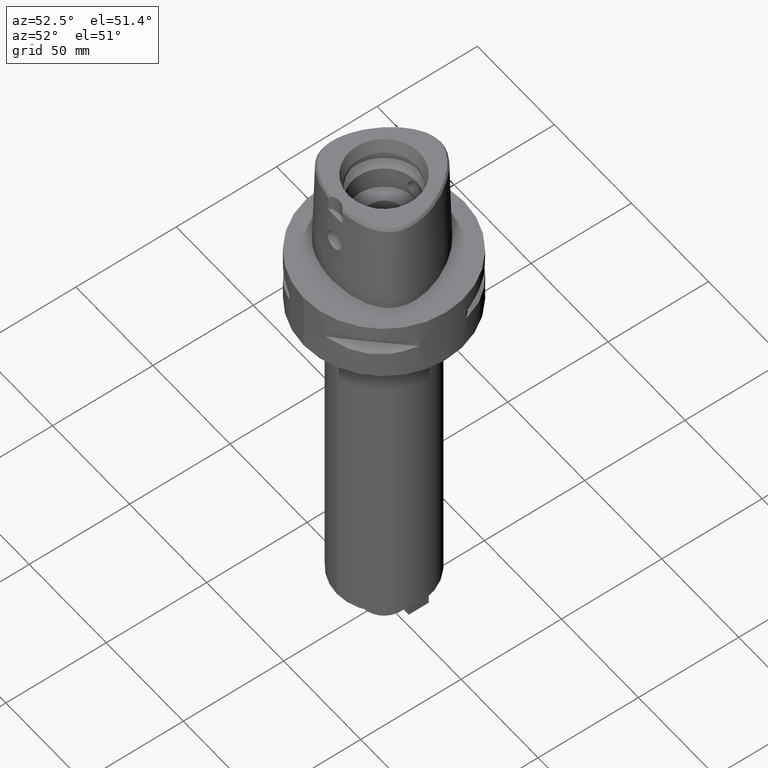
[diagram: clean part render]
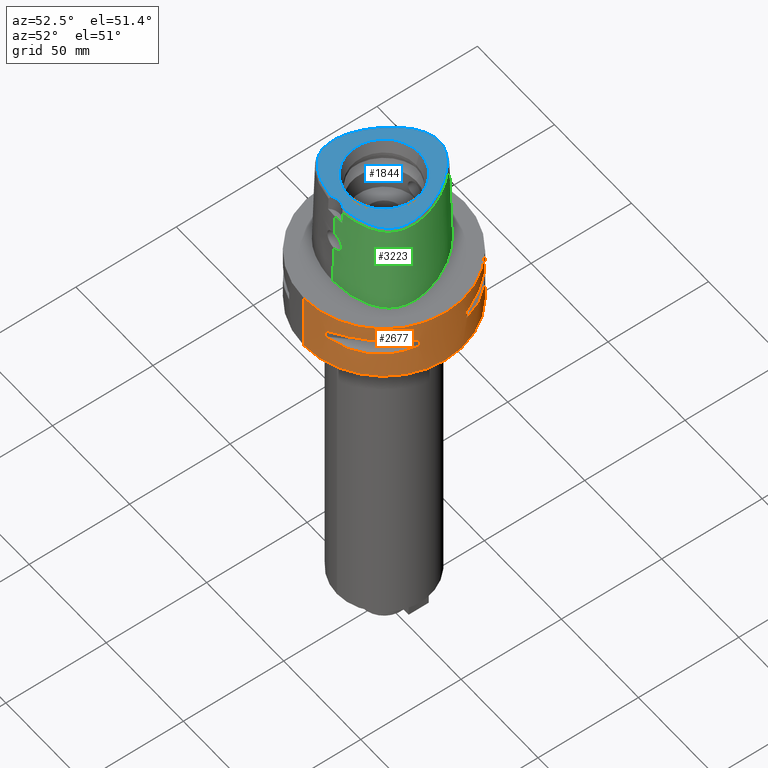
[diagram: same view with three faces highlighted in distinct colors, each labeled with its STEP entity id]
A machine part, auxiliary view with three faces highlighted in distinct colors.
Their STEP definitions:

[orange] entity #2677 — the highlighted cylindrical surface (partial cylindrical patch) has radius 40 mm, axis along (0, 0, -1).
#275=CARTESIAN_POINT('',(0.E0,1.358133300254E-14,2.131628207280E-14));
#276=DIRECTION('',(0.E0,0.E0,-1.E0));
#277=DIRECTION('',(0.E0,1.E0,0.E0));
#278=AXIS2_PLACEMENT_3D('',#275,#276,#277);
#363=DIRECTION('',(0.E0,0.E0,-1.E0));
#364=VECTOR('',#363,3.E1);
#365=CARTESIAN_POINT('',(0.E0,-4.E1,1.421085471520E-14));
#366=LINE('',#365,#364);
#420=DIRECTION('',(0.E0,0.E0,-1.E0));
#421=VECTOR('',#420,3.E1);
#422=CARTESIAN_POINT('',(0.E0,4.E1,1.421085471520E-14));
#423=LINE('',#422,#421);
#427=DIRECTION('',(0.E0,0.E0,-1.E0));
#428=VECTOR('',#427,4.1E0);
#429=CARTESIAN_POINT('',(1.176033600281E1,-3.823211342708E1,-9.95E0));
#430=LINE('',#429,#428);
#434=CARTESIAN_POINT('',(1.323717311056E1,-3.774622163927E1,-1.405E1));
#435=CARTESIAN_POINT('',(1.626143876435E1,-3.668564587161E1,-1.485167303901E1));
#436=CARTESIAN_POINT('',(2.171906657626E1,-3.397359084062E1,-1.597254843317E1));
#437=CARTESIAN_POINT('',(2.850324251697E1,-2.850324251697E1,-1.650891631180E1));
#438=CARTESIAN_POINT('',(3.397359084062E1,-2.171906657626E1,-1.597254843317E1));
#439=CARTESIAN_POINT('',(3.668564587161E1,-1.626143876435E1,-1.485167303901E1));
#440=CARTESIAN_POINT('',(3.774622163927E1,-1.323717311056E1,-1.405E1));
#445=DIRECTION('',(0.E0,0.E0,1.E0));
#446=VECTOR('',#445,4.1E0);
#447=CARTESIAN_POINT('',(3.823211342708E1,-1.176033600281E1,-1.405E1));
#448=LINE('',#447,#446);
#452=DIRECTION('',(0.E0,0.E0,-1.E0));
#453=VECTOR('',#452,4.1E0);
#454=CARTESIAN_POINT('',(3.823211342708E1,1.176033600281E1,-9.95E0));
#455=LINE('',#454,#453);
#459=CARTESIAN_POINT('',(3.774622163927E1,1.323717311056E1,-1.405E1));
#460=CARTESIAN_POINT('',(3.668564587161E1,1.626143876435E1,-1.485167303901E1));
#461=CARTESIAN_POINT('',(3.397359084062E1,2.171906657626E1,-1.597254843317E1));
#462=CARTESIAN_POINT('',(2.850324251697E1,2.850324251697E1,-1.650891631180E1));
#463=CARTESIAN_POINT('',(2.171906657626E1,3.397359084062E1,-1.597254843317E1));
#464=CARTESIAN_POINT('',(1.626143876435E1,3.668564587161E1,-1.485167303901E1));
#465=CARTESIAN_POINT('',(1.323717311056E1,3.774622163927E1,-1.405E1));
#470=DIRECTION('',(0.E0,0.E0,1.E0));
#471=VECTOR('',#470,4.1E0);
#472=CARTESIAN_POINT('',(1.176033600281E1,3.823211342708E1,-1.405E1));
#473=LINE('',#472,#471);
#477=CARTESIAN_POINT('',(0.E0,1.358133300254E-14,-3.E1));
#478=DIRECTION('',(0.E0,0.E0,1.E0));
#479=DIRECTION('',(0.E0,-1.E0,0.E0));
#480=AXIS2_PLACEMENT_3D('',#477,#478,#479);
#1342=CARTESIAN_POINT('',(1.323717311056E1,-3.774622163927E1,
-9.950000000002E0));
#1343=CARTESIAN_POINT('',(1.626143876435E1,-3.668564587161E1,
-9.148326960991E0));
#1344=CARTESIAN_POINT('',(2.171906657626E1,-3.397359084062E1,
-8.027451566833E0));
#1345=CARTESIAN_POINT('',(2.850324251697E1,-2.850324251697E1,
-7.491083688204E0));
#1346=CARTESIAN_POINT('',(3.397359084062E1,-2.171906657626E1,
-8.027451566833E0));
#1347=CARTESIAN_POINT('',(3.668564587161E1,-1.626143876435E1,
-9.148326960991E0));
#1348=CARTESIAN_POINT('',(3.774622163927E1,-1.323717311056E1,
-9.950000000002E0));
#1353=CARTESIAN_POINT('',(0.E0,1.358133300254E-14,-9.95E0));
#1354=DIRECTION('',(0.E0,0.E0,1.E0));
#1355=DIRECTION('',(9.436555409818E-1,-3.309293277639E-1,0.E0));
#1356=AXIS2_PLACEMENT_3D('',#1353,#1354,#1355);
#1361=CARTESIAN_POINT('',(0.E0,1.358133300254E-14,-9.95E0));
#1362=DIRECTION('',(0.E0,0.E0,1.E0));
#1363=DIRECTION('',(2.940084000703E-1,-9.558028356770E-1,0.E0));
#1364=AXIS2_PLACEMENT_3D('',#1361,#1362,#1363);
#1383=CARTESIAN_POINT('',(0.E0,1.358133300254E-14,-1.405E1));
#1384=DIRECTION('',(0.E0,0.E0,-1.E0));
#1385=DIRECTION('',(9.558028356770E-1,-2.940084000703E-1,0.E0));
#1386=AXIS2_PLACEMENT_3D('',#1383,#1384,#1385);
#1391=CARTESIAN_POINT('',(0.E0,1.358133300254E-14,-1.405E1));
#1392=DIRECTION('',(0.E0,0.E0,-1.E0));
#1393=DIRECTION('',(3.309293277639E-1,-9.436555409818E-1,0.E0));
#1394=AXIS2_PLACEMENT_3D('',#1391,#1392,#1393);
#1413=CARTESIAN_POINT('',(3.774622163927E1,1.323717311056E1,-9.950000000002E0));
#1414=CARTESIAN_POINT('',(3.668564587161E1,1.626143876435E1,-9.148326960991E0));
#1415=CARTESIAN_POINT('',(3.397359084062E1,2.171906657626E1,-8.027451566833E0));
#1416=CARTESIAN_POINT('',(2.850324251697E1,2.850324251697E1,-7.491083688204E0));
#1417=CARTESIAN_POINT('',(2.171906657626E1,3.397359084062E1,-8.027451566833E0));
#1418=CARTESIAN_POINT('',(1.626143876435E1,3.668564587161E1,-9.148326960991E0));
#1419=CARTESIAN_POINT('',(1.323717311056E1,3.774622163927E1,-9.950000000002E0));
#1424=CARTESIAN_POINT('',(0.E0,1.358133300254E-14,-9.95E0));
#1425=DIRECTION('',(0.E0,0.E0,1.E0));
#1426=DIRECTION('',(3.309293277639E-1,9.436555409818E-1,0.E0));
#1427=AXIS2_PLACEMENT_3D('',#1424,#1425,#1426);
#1432=CARTESIAN_POINT('',(0.E0,1.358133300254E-14,-9.95E0));
#1433=DIRECTION('',(0.E0,0.E0,1.E0));
#1434=DIRECTION('',(9.558028356770E-1,2.940084000703E-1,0.E0));
#1435=AXIS2_PLACEMENT_3D('',#1432,#1433,#1434);
#1454=CARTESIAN_POINT('',(0.E0,1.358133300254E-14,-1.405E1));
#1455=DIRECTION('',(0.E0,0.E0,-1.E0));
#1456=DIRECTION('',(2.940084000703E-1,9.558028356770E-1,0.E0));
#1457=AXIS2_PLACEMENT_3D('',#1454,#1455,#1456);
#1462=CARTESIAN_POINT('',(0.E0,1.358133300254E-14,-1.405E1));
#1463=DIRECTION('',(0.E0,0.E0,-1.E0));
#1464=DIRECTION('',(9.436555409818E-1,3.309293277639E-1,0.E0));
#1465=AXIS2_PLACEMENT_3D('',#1462,#1463,#1464);
#1648=CARTESIAN_POINT('',(0.E0,-4.E1,2.131628207280E-14));
#1649=CARTESIAN_POINT('',(0.E0,4.E1,2.131628207280E-14));
#1650=VERTEX_POINT('',#1648);
#1651=VERTEX_POINT('',#1649);
#1652=CARTESIAN_POINT('',(0.E0,4.E1,-3.E1));
#1653=VERTEX_POINT('',#1652);
#1654=CARTESIAN_POINT('',(0.E0,-4.E1,-3.E1));
#1655=VERTEX_POINT('',#1654);
#1682=VERTEX_POINT('',#1342);
#1683=VERTEX_POINT('',#1348);
#1684=CARTESIAN_POINT('',(1.176033600281E1,-3.823211342708E1,-9.95E0));
#1685=VERTEX_POINT('',#1684);
#1686=CARTESIAN_POINT('',(1.176033600281E1,-3.823211342708E1,-1.405E1));
#1687=VERTEX_POINT('',#1686);
#1688=CARTESIAN_POINT('',(1.323717311056E1,-3.774622163927E1,-1.405E1));
#1689=VERTEX_POINT('',#1688);
#1690=VERTEX_POINT('',#440);
#1691=CARTESIAN_POINT('',(3.823211342708E1,-1.176033600281E1,-1.405E1));
#1692=VERTEX_POINT('',#1691);
#1693=CARTESIAN_POINT('',(3.823211342708E1,-1.176033600281E1,-9.95E0));
#1694=VERTEX_POINT('',#1693);
#1695=VERTEX_POINT('',#1413);
#1696=VERTEX_POINT('',#1419);
#1697=CARTESIAN_POINT('',(3.823211342708E1,1.176033600281E1,-9.95E0));
#1698=VERTEX_POINT('',#1697);
#1699=CARTESIAN_POINT('',(3.823211342708E1,1.176033600281E1,-1.405E1));
#1700=VERTEX_POINT('',#1699);
#1701=CARTESIAN_POINT('',(3.774622163927E1,1.323717311056E1,-1.405E1));
#1702=VERTEX_POINT('',#1701);
#1703=VERTEX_POINT('',#465);
#1704=CARTESIAN_POINT('',(1.176033600281E1,3.823211342708E1,-1.405E1));
#1705=VERTEX_POINT('',#1704);
#1706=CARTESIAN_POINT('',(1.176033600281E1,3.823211342708E1,-9.95E0));
#1707=VERTEX_POINT('',#1706);
#2629=CARTESIAN_POINT('',(0.E0,1.358133300254E-14,1.09E1));
#2630=DIRECTION('',(0.E0,0.E0,-1.E0));
#2631=DIRECTION('',(0.E0,-1.E0,0.E0));
#2632=AXIS2_PLACEMENT_3D('',#2629,#2630,#2631);
#2633=CYLINDRICAL_SURFACE('',#2632,4.E1);
#2634=ORIENTED_EDGE('',*,*,#2583,.T.);
#2636=ORIENTED_EDGE('',*,*,#2635,.F.);
#2637=ORIENTED_EDGE('',*,*,#2586,.F.);
#2638=ORIENTED_EDGE('',*,*,#2568,.F.);
#2639=EDGE_LOOP('',(#2634,#2636,#2637,#2638));
#2640=FACE_OUTER_BOUND('',#2639,.F.);
#2642=ORIENTED_EDGE('',*,*,#2641,.F.);
#2644=ORIENTED_EDGE('',*,*,#2643,.F.);
#2646=ORIENTED_EDGE('',*,*,#2645,.T.);
#2648=ORIENTED_EDGE('',*,*,#2647,.F.);
#2650=ORIENTED_EDGE('',*,*,#2649,.T.);
#2652=ORIENTED_EDGE('',*,*,#2651,.F.);
#2654=ORIENTED_EDGE('',*,*,#2653,.T.);
#2656=ORIENTED_EDGE('',*,*,#2655,.F.);
#2657=EDGE_LOOP('',(#2642,#2644,#2646,#2648,#2650,#2652,#2654,#2656));
#2658=FACE_BOUND('',#2657,.F.);
#2660=ORIENTED_EDGE('',*,*,#2659,.F.);
#2662=ORIENTED_EDGE('',*,*,#2661,.F.);
#2664=ORIENTED_EDGE('',*,*,#2663,.T.);
#2666=ORIENTED_EDGE('',*,*,#2665,.F.);
#2668=ORIENTED_EDGE('',*,*,#2667,.T.);
#2670=ORIENTED_EDGE('',*,*,#2669,.F.);
#2672=ORIENTED_EDGE('',*,*,#2671,.T.);
#2674=ORIENTED_EDGE('',*,*,#2673,.F.);
#2675=EDGE_LOOP('',(#2660,#2662,#2664,#2666,#2668,#2670,#2672,#2674));
#2676=FACE_BOUND('',#2675,.F.);
#279=CIRCLE('',#278,4.E1);
#441=B_SPLINE_CURVE_WITH_KNOTS('',3,(#434,#435,#436,#437,#438,#439,#440),
.UNSPECIFIED.,.F.,.F.,(4,1,1,1,4),(0.E0,2.5E-1,5.E-1,7.5E-1,1.E0),
.UNSPECIFIED.);
#466=B_SPLINE_CURVE_WITH_KNOTS('',3,(#459,#460,#461,#462,#463,#464,#465),
.UNSPECIFIED.,.F.,.F.,(4,1,1,1,4),(0.E0,2.5E-1,5.E-1,7.5E-1,1.E0),
.UNSPECIFIED.);
#481=CIRCLE('',#480,4.E1);
#1349=B_SPLINE_CURVE_WITH_KNOTS('',3,(#1342,#1343,#1344,#1345,#1346,#1347,
#1348),.UNSPECIFIED.,.F.,.F.,(4,1,1,1,4),(0.E0,2.5E-1,5.E-1,7.5E-1,1.E0),
.UNSPECIFIED.);
#1357=CIRCLE('',#1356,4.E1);
#1365=CIRCLE('',#1364,4.E1);
#1387=CIRCLE('',#1386,4.E1);
#1395=CIRCLE('',#1394,4.E1);
#1420=B_SPLINE_CURVE_WITH_KNOTS('',3,(#1413,#1414,#1415,#1416,#1417,#1418,
#1419),.UNSPECIFIED.,.F.,.F.,(4,1,1,1,4),(0.E0,2.5E-1,5.E-1,7.5E-1,1.E0),
.UNSPECIFIED.);
#1428=CIRCLE('',#1427,4.E1);
#1436=CIRCLE('',#1435,4.E1);
#1458=CIRCLE('',#1457,4.E1);
#1466=CIRCLE('',#1465,4.E1);
#2568=EDGE_CURVE('',#1651,#1650,#279,.T.);
#2583=EDGE_CURVE('',#1651,#1653,#423,.T.);
#2586=EDGE_CURVE('',#1650,#1655,#366,.T.);
#2635=EDGE_CURVE('',#1655,#1653,#481,.T.);
#2641=EDGE_CURVE('',#1682,#1683,#1349,.T.);
#2643=EDGE_CURVE('',#1685,#1682,#1365,.T.);
#2645=EDGE_CURVE('',#1685,#1687,#430,.T.);
#2647=EDGE_CURVE('',#1689,#1687,#1395,.T.);
#2649=EDGE_CURVE('',#1689,#1690,#441,.T.);
#2651=EDGE_CURVE('',#1692,#1690,#1387,.T.);
#2653=EDGE_CURVE('',#1692,#1694,#448,.T.);
#2655=EDGE_CURVE('',#1683,#1694,#1357,.T.);
#2659=EDGE_CURVE('',#1695,#1696,#1420,.T.);
#2661=EDGE_CURVE('',#1698,#1695,#1436,.T.);
#2663=EDGE_CURVE('',#1698,#1700,#455,.T.);
#2665=EDGE_CURVE('',#1702,#1700,#1466,.T.);
#2667=EDGE_CURVE('',#1702,#1703,#466,.T.);
#2669=EDGE_CURVE('',#1705,#1703,#1458,.T.);
#2671=EDGE_CURVE('',#1705,#1707,#473,.T.);
#2673=EDGE_CURVE('',#1696,#1707,#1428,.T.);
#2677=ADVANCED_FACE('',(#2640,#2658,#2676),#2633,.T.);

[blue] entity #1844 — the highlighted planar face has unit normal (0, 0, 1).
#17=CARTESIAN_POINT('',(0.E0,-2.82E1,4.8E1));
#18=DIRECTION('',(0.E0,0.E0,1.E0));
#19=DIRECTION('',(6.087555377261E-1,7.933578607967E-1,0.E0));
#20=AXIS2_PLACEMENT_3D('',#17,#18,#19);
#26=CARTESIAN_POINT('',(-3.652529789307E0,-2.343985019792E1,4.8E1));
#27=CARTESIAN_POINT('',(-4.920185514919E0,-2.333959305667E1,4.8E1));
#28=CARTESIAN_POINT('',(-7.296965889571E0,-2.304479036074E1,4.8E1));
#29=CARTESIAN_POINT('',(-1.038350504593E1,-2.240487311094E1,4.8E1));
#30=CARTESIAN_POINT('',(-1.302716117657E1,-2.163405987119E1,4.8E1));
#31=CARTESIAN_POINT('',(-1.534744891219E1,-2.075042073762E1,4.8E1));
#32=CARTESIAN_POINT('',(-1.743174668987E1,-1.974480282443E1,4.8E1));
#33=CARTESIAN_POINT('',(-1.929497332546E1,-1.861121593953E1,4.8E1));
#34=CARTESIAN_POINT('',(-2.082674676698E1,-1.744232237279E1,4.8E1));
#35=CARTESIAN_POINT('',(-2.207394626105E1,-1.625884090164E1,4.8E1));
#36=CARTESIAN_POINT('',(-2.308125739786E1,-1.506270665690E1,4.8E1));
#37=CARTESIAN_POINT('',(-2.388595513213E1,-1.385121637585E1,4.8E1));
#38=CARTESIAN_POINT('',(-2.454022536403E1,-1.256128119493E1,4.8E1));
#39=CARTESIAN_POINT('',(-2.508102460542E1,-1.110720063868E1,4.8E1));
#40=CARTESIAN_POINT('',(-2.549327907319E1,-9.449883936858E0,4.8E1));
#41=CARTESIAN_POINT('',(-2.575228002245E1,-7.567051103474E0,4.8E1));
#42=CARTESIAN_POINT('',(-2.581937651850E1,-5.393618590186E0,4.8E1));
#43=CARTESIAN_POINT('',(-2.566553388803E1,-3.104055853454E0,4.8E1));
#44=CARTESIAN_POINT('',(-2.528875151652E1,-6.621923254144E-1,4.8E1));
#45=CARTESIAN_POINT('',(-2.465677504141E1,1.989372483279E0,4.8E1));
#46=CARTESIAN_POINT('',(-2.370108420946E1,4.949279852960E0,4.8E1));
#47=CARTESIAN_POINT('',(-2.230972722020E1,8.292752135287E0,4.8E1));
#48=CARTESIAN_POINT('',(-2.049786932259E1,1.177489391337E1,4.8E1));
#49=CARTESIAN_POINT('',(-1.839393321321E1,1.509293123697E1,4.8E1));
#50=CARTESIAN_POINT('',(-1.618492959222E1,1.799359893181E1,4.8E1));
#51=CARTESIAN_POINT('',(-1.410143462756E1,2.030655262005E1,4.8E1));
#52=CARTESIAN_POINT('',(-1.212637921404E1,2.218266253794E1,4.8E1));
#53=CARTESIAN_POINT('',(-1.020850397170E1,2.373205449814E1,4.8E1));
#54=CARTESIAN_POINT('',(-8.298382393600E0,2.502009578481E1,4.8E1));
#55=CARTESIAN_POINT('',(-6.410787775242E0,2.604345239987E1,4.8E1));
#56=CARTESIAN_POINT('',(-4.633991420345E0,2.677848923550E1,4.8E1));
#57=CARTESIAN_POINT('',(-2.989096997131E0,2.725837454344E1,4.8E1));
#58=CARTESIAN_POINT('',(-1.458612825617E0,2.752624330039E1,4.8E1));
#59=CARTESIAN_POINT('',(-4.776030054484E-1,2.758331912251E1,4.8E1));
#60=CARTESIAN_POINT('',(-2.553074881553E-11,2.758331912251E1,4.8E1));
#65=CARTESIAN_POINT('',(-2.553074881553E-11,2.758331912251E1,4.8E1));
#66=CARTESIAN_POINT('',(4.769179887717E-1,2.758331912251E1,4.8E1));
#67=CARTESIAN_POINT('',(1.457018670580E0,2.752637928417E1,4.8E1));
#68=CARTESIAN_POINT('',(2.987519306247E0,2.725885904919E1,4.8E1));
#69=CARTESIAN_POINT('',(4.633825294339E0,2.677831320941E1,4.8E1));
#70=CARTESIAN_POINT('',(6.404291145877E0,2.604677399690E1,4.8E1));
#71=CARTESIAN_POINT('',(8.310970996822E0,2.501349001942E1,4.8E1));
#72=CARTESIAN_POINT('',(1.023691074403E1,2.371112664986E1,4.8E1));
#73=CARTESIAN_POINT('',(1.214645717888E1,2.216439981970E1,4.8E1));
#74=CARTESIAN_POINT('',(1.411483362244E1,2.029298592904E1,4.8E1));
#75=CARTESIAN_POINT('',(1.620956232366E1,1.796456365663E1,4.8E1));
#76=CARTESIAN_POINT('',(1.842120424478E1,1.505356888934E1,4.8E1));
#77=CARTESIAN_POINT('',(2.051823163064E1,1.173894454079E1,4.8E1));
#78=CARTESIAN_POINT('',(2.232430712145E1,8.261589780953E0,4.8E1));
#79=CARTESIAN_POINT('',(2.371299090503E1,4.916653650049E0,4.8E1));
#80=CARTESIAN_POINT('',(2.466286798986E1,1.967194756650E0,4.8E1));
#81=CARTESIAN_POINT('',(2.529334611612E1,-6.854537108242E-1,4.8E1));
#82=CARTESIAN_POINT('',(2.566837344031E1,-3.126944286035E0,4.8E1));
#83=CARTESIAN_POINT('',(2.581945899810E1,-5.422551005420E0,4.8E1));
#84=CARTESIAN_POINT('',(2.575183115606E1,-7.567631692057E0,4.8E1));
#85=CARTESIAN_POINT('',(2.549168253416E1,-9.459349149608E0,4.8E1));
#86=CARTESIAN_POINT('',(2.508008585346E1,-1.110978347966E1,4.8E1));
#87=CARTESIAN_POINT('',(2.453723299560E1,-1.256869949189E1,4.8E1));
#88=CARTESIAN_POINT('',(2.388216433770E1,-1.385725941433E1,4.8E1));
#89=CARTESIAN_POINT('',(2.307982335154E1,-1.506468322756E1,4.8E1));
#90=CARTESIAN_POINT('',(2.206904261936E1,-1.626406625302E1,4.8E1));
#91=CARTESIAN_POINT('',(2.082448576137E1,-1.744403658297E1,4.8E1));
#92=CARTESIAN_POINT('',(1.929245076461E1,-1.861306970467E1,4.8E1));
#93=CARTESIAN_POINT('',(1.742841216305E1,-1.974632042135E1,4.8E1));
#94=CARTESIAN_POINT('',(1.535535374107E1,-2.074680312096E1,4.8E1));
#95=CARTESIAN_POINT('',(1.303629272376E1,-2.163095655050E1,4.8E1));
#96=CARTESIAN_POINT('',(1.039702313411E1,-2.240158434527E1,4.8E1));
#97=CARTESIAN_POINT('',(7.302052028253E0,-2.304421874479E1,4.8E1));
#98=CARTESIAN_POINT('',(4.922084322998E0,-2.333941479134E1,4.8E1));
#99=CARTESIAN_POINT('',(3.652533226355E0,-2.343985283522E1,4.8E1));
#104=CARTESIAN_POINT('',(0.E0,0.E0,4.8E1));
#105=DIRECTION('',(0.E0,0.E0,1.E0));
#106=DIRECTION('',(0.E0,1.E0,0.E0));
#107=AXIS2_PLACEMENT_3D('',#104,#105,#106);
#112=CARTESIAN_POINT('',(0.E0,0.E0,4.8E1));
#113=DIRECTION('',(0.E0,0.E0,1.E0));
#114=DIRECTION('',(0.E0,-1.E0,0.E0));
#115=AXIS2_PLACEMENT_3D('',#112,#113,#114);
#1626=CARTESIAN_POINT('',(3.652533226356E0,-2.343985283522E1,4.8E1));
#1627=CARTESIAN_POINT('',(-3.652529789305E0,-2.343985019792E1,4.8E1));
#1628=VERTEX_POINT('',#1626);
#1629=VERTEX_POINT('',#1627);
#1630=VERTEX_POINT('',#60);
#1631=CARTESIAN_POINT('',(0.E0,1.771487483156E1,4.8E1));
#1632=CARTESIAN_POINT('',(0.E0,-1.771487483156E1,4.8E1));
#1633=VERTEX_POINT('',#1631);
#1634=VERTEX_POINT('',#1632);
#1825=CARTESIAN_POINT('',(0.E0,0.E0,4.8E1));
#1826=DIRECTION('',(0.E0,0.E0,1.E0));
#1827=DIRECTION('',(0.E0,1.E0,0.E0));
#1828=AXIS2_PLACEMENT_3D('',#1825,#1826,#1827);
#1829=PLANE('',#1828);
#1831=ORIENTED_EDGE('',*,*,#1830,.T.);
#1833=ORIENTED_EDGE('',*,*,#1832,.T.);
#1835=ORIENTED_EDGE('',*,*,#1834,.T.);
#1836=EDGE_LOOP('',(#1831,#1833,#1835));
#1837=FACE_OUTER_BOUND('',#1836,.F.);
#1839=ORIENTED_EDGE('',*,*,#1838,.T.);
#1841=ORIENTED_EDGE('',*,*,#1840,.T.);
#1842=EDGE_LOOP('',(#1839,#1841));
#1843=FACE_BOUND('',#1842,.F.);
#21=CIRCLE('',#20,6.E0);
#61=B_SPLINE_CURVE_WITH_KNOTS('',3,(#26,#27,#28,#29,#30,#31,#32,#33,#34,#35,#36,
#37,#38,#39,#40,#41,#42,#43,#44,#45,#46,#47,#48,#49,#50,#51,#52,#53,#54,#55,#56,
#57,#58,#59,#60),.UNSPECIFIED.,.F.,.F.,(4,1,1,1,1,1,1,1,1,1,1,1,1,1,1,1,1,1,1,1,
1,1,1,1,1,1,1,1,1,1,1,1,4),(0.E0,3.125E-2,6.25E-2,9.375E-2,1.25E-1,1.5625E-1,
1.875E-1,2.1875E-1,2.5E-1,2.8125E-1,3.125E-1,3.4375E-1,3.75E-1,4.0625E-1,
4.375E-1,4.6875E-1,5.E-1,5.3125E-1,5.625E-1,5.9375E-1,6.25E-1,6.5625E-1,
6.875E-1,7.1875E-1,7.5E-1,7.8125E-1,8.125E-1,8.4375E-1,8.75E-1,9.0625E-1,
9.375E-1,9.6875E-1,1.E0),.UNSPECIFIED.);
#100=B_SPLINE_CURVE_WITH_KNOTS('',3,(#65,#66,#67,#68,#69,#70,#71,#72,#73,#74,
#75,#76,#77,#78,#79,#80,#81,#82,#83,#84,#85,#86,#87,#88,#89,#90,#91,#92,#93,#94,
#95,#96,#97,#98,#99),.UNSPECIFIED.,.F.,.F.,(4,1,1,1,1,1,1,1,1,1,1,1,1,1,1,1,1,1,
1,1,1,1,1,1,1,1,1,1,1,1,1,1,4),(0.E0,3.125E-2,6.25E-2,9.375E-2,1.25E-1,
1.5625E-1,1.875E-1,2.1875E-1,2.5E-1,2.8125E-1,3.125E-1,3.4375E-1,3.75E-1,
4.0625E-1,4.375E-1,4.6875E-1,5.E-1,5.3125E-1,5.625E-1,5.9375E-1,6.25E-1,
6.5625E-1,6.875E-1,7.1875E-1,7.5E-1,7.8125E-1,8.125E-1,8.4375E-1,8.75E-1,
9.0625E-1,9.375E-1,9.6875E-1,1.E0),.UNSPECIFIED.);
#108=CIRCLE('',#107,1.771487483156E1);
#116=CIRCLE('',#115,1.771487483156E1);
#1830=EDGE_CURVE('',#1628,#1629,#21,.T.);
#1832=EDGE_CURVE('',#1629,#1630,#61,.T.);
#1834=EDGE_CURVE('',#1630,#1628,#100,.T.);
#1838=EDGE_CURVE('',#1633,#1634,#108,.T.);
#1840=EDGE_CURVE('',#1634,#1633,#116,.T.);
#1844=ADVANCED_FACE('',(#1837,#1843),#1829,.T.);

[green] entity #3223 — the highlighted face is a freeform B-spline surface patch.
#120=CARTESIAN_POINT('',(4.472216720977E0,-2.420009030094E1,4.652069014669E1));
#130=CARTESIAN_POINT('',(-1.431900541400E-11,2.841206021535E1,
4.652071719451E1));
#131=CARTESIAN_POINT('',(5.021725664769E-1,2.841206021535E1,4.652071719450E1));
#132=CARTESIAN_POINT('',(1.506610441187E0,2.835512270041E1,4.652071983557E1));
#133=CARTESIAN_POINT('',(3.108953261636E0,2.808238624704E1,4.652071728016E1));
#134=CARTESIAN_POINT('',(4.808340568920E0,2.759556086823E1,4.652071881084E1));
#135=CARTESIAN_POINT('',(6.625357501605E0,2.685909542805E1,4.652071592275E1));
#136=CARTESIAN_POINT('',(8.575539499789E0,2.582312769753E1,4.652071809275E1));
#137=CARTESIAN_POINT('',(1.058272297844E1,2.448802552159E1,4.652071545922E1));
#138=CARTESIAN_POINT('',(1.255271719751E1,2.291105294850E1,4.652072464583E1));
#139=CARTESIAN_POINT('',(1.456596456415E1,2.101847882335E1,4.652071666989E1));
#140=CARTESIAN_POINT('',(1.671208114036E1,1.865800534057E1,4.652071838276E1));
#141=CARTESIAN_POINT('',(1.896494853790E1,1.572318731451E1,4.652067580953E1));
#142=CARTESIAN_POINT('',(2.109626896268E1,1.239428255992E1,4.652072929398E1));
#143=CARTESIAN_POINT('',(2.294512390672E1,8.890564462807E0,4.652068857718E1));
#144=CARTESIAN_POINT('',(2.440090423115E1,5.450801300640E0,4.652072973792E1));
#145=CARTESIAN_POINT('',(2.540653494796E1,2.388405928696E0,4.652071108247E1));
#146=CARTESIAN_POINT('',(2.607229517739E1,-3.481655286004E-1,4.652071845594E1));
#147=CARTESIAN_POINT('',(2.647489332439E1,-2.873871723759E0,4.652071627216E1));
#148=CARTESIAN_POINT('',(2.664563324315E1,-5.251070650593E0,4.652071684952E1));
#149=CARTESIAN_POINT('',(2.659128463426E1,-7.475609751880E0,4.652071878351E1));
#150=CARTESIAN_POINT('',(2.633767211450E1,-9.448757005893E0,4.652071623411E1));
#151=CARTESIAN_POINT('',(2.592434895123E1,-1.118403003958E1,4.652071781575E1));
#152=CARTESIAN_POINT('',(2.537350906983E1,-1.272389135831E1,4.652071568091E1));
#153=CARTESIAN_POINT('',(2.470258284500E1,-1.409447603356E1,4.652071276704E1));
#154=CARTESIAN_POINT('',(2.388530310148E1,-1.536969240081E1,4.652071589398E1));
#155=CARTESIAN_POINT('',(2.286896963995E1,-1.662083667177E1,4.652071932310E1));
#156=CARTESIAN_POINT('',(2.162042468012E1,-1.785111203338E1,4.652071933588E1));
#157=CARTESIAN_POINT('',(2.010353989308E1,-1.905759074428E1,4.652071849706E1));
#158=CARTESIAN_POINT('',(1.825156424673E1,-2.023861211787E1,4.652071856715E1));
#159=CARTESIAN_POINT('',(1.614085918692E1,-2.130797370996E1,4.652071766158E1));
#160=CARTESIAN_POINT('',(1.380874833114E1,-2.224188339290E1,4.652071847379E1));
#161=CARTESIAN_POINT('',(1.118681572743E1,-2.305368528978E1,4.652071056297E1));
#162=CARTESIAN_POINT('',(8.122551307633E0,-2.374335939032E1,4.652073679283E1));
#163=CARTESIAN_POINT('',(5.735778954892E0,-2.407913499099E1,4.652064355489E1));
#164=CARTESIAN_POINT('',(4.472216720977E0,-2.420009030094E1,4.652069014669E1));
#235=DIRECTION('',(1.388127457203E-9,-2.499239851702E-2,-9.996876412242E-1));
#236=VECTOR('',#235,1.045326522127E1);
#237=CARTESIAN_POINT('',(-1.451045074373E-8,-2.457504746727E1,
4.000000005214E1));
#238=LINE('',#237,#236);
#255=CARTESIAN_POINT('',(-9.974733257610E-13,-2.506378435149E1,2.045E1));
#260=DIRECTION('',(-3.440669308446E-13,-2.499051295421E-2,-9.996876883619E-1));
#261=VECTOR('',#260,2.045638876829E1);
#262=CARTESIAN_POINT('',(-9.974733257610E-13,-2.506378435149E1,2.045E1));
#263=LINE('',#262,#261);
#283=CARTESIAN_POINT('',(-8.035840225430E-12,-2.5575E1,2.727447897162E-14));
#284=CARTESIAN_POINT('',(1.338511755905E0,-2.5575E1,2.727447897162E-14));
#285=CARTESIAN_POINT('',(3.939670887501E0,-2.546652265675E1,
-1.265812974277E-14));
#286=CARTESIAN_POINT('',(7.652623651017E0,-2.500969599570E1,0.E0));
#287=CARTESIAN_POINT('',(1.106055091847E1,-2.429725373839E1,0.E0));
#288=CARTESIAN_POINT('',(1.407254300103E1,-2.339106876428E1,0.E0));
#289=CARTESIAN_POINT('',(1.667508615443E1,-2.234805476749E1,0.E0));
#290=CARTESIAN_POINT('',(1.889558179935E1,-2.121035249442E1,0.E0));
#291=CARTESIAN_POINT('',(2.077102703856E1,-2.000901974751E1,0.E0));
#292=CARTESIAN_POINT('',(2.234068161827E1,-1.876700595109E1,0.E0));
#293=CARTESIAN_POINT('',(2.365368863184E1,-1.748655920347E1,0.E0));
#294=CARTESIAN_POINT('',(2.474255853827E1,-1.617079159316E1,0.E0));
#295=CARTESIAN_POINT('',(2.565207541979E1,-1.478335762111E1,0.E0));
#296=CARTESIAN_POINT('',(2.638892879071E1,-1.331046028762E1,0.E0));
#297=CARTESIAN_POINT('',(2.697982293571E1,-1.171124712440E1,0.E0));
#298=CARTESIAN_POINT('',(2.742768976868E1,-9.939782084123E0,0.E0));
#299=CARTESIAN_POINT('',(2.771670171487E1,-7.955656188474E0,0.E0));
#300=CARTESIAN_POINT('',(2.781652523404E1,-5.721679278746E0,0.E0));
#301=CARTESIAN_POINT('',(2.768732144930E1,-3.222650110822E0,0.E0));
#302=CARTESIAN_POINT('',(2.728346033482E1,-4.379229179436E-1,0.E0));
#303=CARTESIAN_POINT('',(2.655528951782E1,2.630099253176E0,0.E0));
#304=CARTESIAN_POINT('',(2.546152998901E1,5.941196908819E0,0.E0));
#305=CARTESIAN_POINT('',(2.398410105344E1,9.409948125403E0,0.E0));
#306=CARTESIAN_POINT('',(2.214433075629E1,1.290170686827E1,0.E0));
#307=CARTESIAN_POINT('',(2.003149454797E1,1.622434110609E1,0.E0));
#308=CARTESIAN_POINT('',(1.776034032834E1,1.922028726766E1,0.E0));
#309=CARTESIAN_POINT('',(1.544083958935E1,2.179958952144E1,0.E0));
#310=CARTESIAN_POINT('',(1.315492682513E1,2.393932544852E1,0.E0));
#311=CARTESIAN_POINT('',(1.095261822519E1,2.566051741568E1,0.E0));
#312=CARTESIAN_POINT('',(8.861508859178E0,2.700336113412E1,0.E0));
#313=CARTESIAN_POINT('',(6.890881823685E0,2.801637645685E1,0.E0));
#314=CARTESIAN_POINT('',(5.026974113172E0,2.874990284286E1,0.E0));
#315=CARTESIAN_POINT('',(3.265648488388E0,2.923925437825E1,0.E0));
#316=CARTESIAN_POINT('',(1.594806921964E0,2.951637330411E1,0.E0));
#317=CARTESIAN_POINT('',(5.235207001023E-1,2.957499999999E1,
2.090920029711E-14));
#318=CARTESIAN_POINT('',(2.338888328605E-11,2.9575E1,2.090920029711E-14));
#323=CARTESIAN_POINT('',(2.338888328605E-11,2.9575E1,2.090920029711E-14));
#358=CARTESIAN_POINT('',(-8.035840225430E-12,-2.5575E1,2.727447897162E-14));
#971=CARTESIAN_POINT('',(-9.974733257610E-13,-2.506378435149E1,2.045E1));
#972=CARTESIAN_POINT('',(4.314207832604E-1,-2.506378435149E1,2.045E1));
#973=CARTESIAN_POINT('',(1.294833440726E0,-2.504883758416E1,2.057362550348E1));
#974=CARTESIAN_POINT('',(2.486465876320E0,-2.498726647870E1,2.111559526577E1));
#975=CARTESIAN_POINT('',(3.481032176196E0,-2.490212102175E1,2.197354559849E1));
#976=CARTESIAN_POINT('',(4.194636570749E0,-2.481513838840E1,2.308172019246E1));
#977=CARTESIAN_POINT('',(4.564816265539E0,-2.474830906284E1,2.434002141555E1));
#978=CARTESIAN_POINT('',(4.565528833608E0,-2.471522165195E1,2.565430156675E1));
#979=CARTESIAN_POINT('',(4.197738302337E0,-2.471873693328E1,2.691022841564E1));
#980=CARTESIAN_POINT('',(3.490197084991E0,-2.474995290235E1,2.801551137478E1));
#981=CARTESIAN_POINT('',(2.496816413379E0,-2.479242270538E1,2.887840683562E1));
#982=CARTESIAN_POINT('',(1.300135704064E0,-2.482740251167E1,2.942543782577E1));
#983=CARTESIAN_POINT('',(4.332394834261E-1,-2.483629963748E1,2.955E1));
#984=CARTESIAN_POINT('',(1.372734075391E-14,-2.483629963748E1,2.955E1));
#989=CARTESIAN_POINT('',(4.602926386879E0,-2.435121850030E1,4.000000005215E1));
#990=CARTESIAN_POINT('',(4.588866899356E0,-2.433440433283E1,4.072434907413E1));
#991=CARTESIAN_POINT('',(4.559961035626E0,-2.430022594202E1,4.217314077646E1));
#992=CARTESIAN_POINT('',(4.516394065040E0,-2.424985529238E1,4.434670381198E1));
#993=CARTESIAN_POINT('',(4.487210999458E0,-2.421685509515E1,4.579599754735E1));
#994=CARTESIAN_POINT('',(4.472216720977E0,-2.420009030094E1,4.652069014669E1));
#999=DIRECTION('',(8.103080597395E-13,2.499051293983E-2,-9.996876883622E-1));
#1000=VECTOR('',#999,4.653525069487E1);
#1001=CARTESIAN_POINT('',(-1.431900541400E-11,2.841206021535E1,
4.652071719451E1));
#1002=LINE('',#1001,#1000);
#1006=CARTESIAN_POINT('',(4.602926386879E0,-2.435121850030E1,4.000000005215E1));
#1007=CARTESIAN_POINT('',(4.092927945188E0,-2.440134254990E1,4.000000005215E1));
#1008=CARTESIAN_POINT('',(3.071957838276E0,-2.448406989328E1,3.999999998262E1));
#1009=CARTESIAN_POINT('',(1.536621703767E0,-2.455890147704E1,3.999999998262E1));
#1010=CARTESIAN_POINT('',(5.124223333400E-1,-2.457504746727E1,
4.000000005214E1));
#1011=CARTESIAN_POINT('',(-1.451045074373E-8,-2.457504746727E1,
4.000000005214E1));
#1016=CARTESIAN_POINT('',(-1.451045074373E-8,-2.457504746727E1,
4.000000005214E1));
#1635=VERTEX_POINT('',#120);
#1636=VERTEX_POINT('',#989);
#1640=CARTESIAN_POINT('',(-1.431900541400E-11,2.841206021535E1,
4.652071719451E1));
#1641=VERTEX_POINT('',#1640);
#1642=VERTEX_POINT('',#323);
#1643=VERTEX_POINT('',#358);
#1644=VERTEX_POINT('',#1016);
#1645=CARTESIAN_POINT('',(1.372734075387E-14,-2.483629963748E1,2.955E1));
#1646=VERTEX_POINT('',#1645);
#1647=VERTEX_POINT('',#255);
#3103=CARTESIAN_POINT('',(-8.532294277337E-1,-2.559082452990E1,
-9.304144359099E-1));
#3104=CARTESIAN_POINT('',(-8.462047062358E-1,-2.518772802733E1,
1.519676911986E1));
#3105=CARTESIAN_POINT('',(-8.391799847379E-1,-2.478463152477E1,
3.132395267563E1));
#3106=CARTESIAN_POINT('',(-8.321552632401E-1,-2.438153502220E1,
4.745113623141E1));
#3107=CARTESIAN_POINT('',(-5.689009026001E-1,-2.559577917682E1,
-9.304144359099E-1));
#3108=CARTESIAN_POINT('',(-5.642169925873E-1,-2.519264566033E1,
1.519676911986E1));
#3109=CARTESIAN_POINT('',(-5.595330825745E-1,-2.478951214385E1,
3.132395267563E1));
#3110=CARTESIAN_POINT('',(-5.548491725617E-1,-2.438637862736E1,
4.745113623141E1));
#3111=CARTESIAN_POINT('',(2.393561154309E0,-2.562160365768E1,
-9.304144359099E-1));
#3112=CARTESIAN_POINT('',(2.373865161280E0,-2.521827244650E1,1.519676911986E1));
#3113=CARTESIAN_POINT('',(2.354169168251E0,-2.481494123533E1,3.132395267563E1));
#3114=CARTESIAN_POINT('',(2.334473175222E0,-2.441161002415E1,4.745113623141E1));
#3115=CARTESIAN_POINT('',(6.695047936363E0,-2.526858194520E1,
-9.304144359099E-1));
#3116=CARTESIAN_POINT('',(6.639625079043E0,-2.486795322850E1,1.519676911986E1));
#3117=CARTESIAN_POINT('',(6.584202221723E0,-2.446732451181E1,3.132395267563E1));
#3118=CARTESIAN_POINT('',(6.528779364402E0,-2.406669579511E1,4.745113623141E1));
#3119=CARTESIAN_POINT('',(1.174634101457E1,-2.415815460995E1,
-9.304144359099E-1));
#3120=CARTESIAN_POINT('',(1.164093424442E1,-2.376831845415E1,1.519676911986E1));
#3121=CARTESIAN_POINT('',(1.153552747427E1,-2.337848229835E1,3.132395267563E1));
#3122=CARTESIAN_POINT('',(1.143012070412E1,-2.298864614255E1,4.745113623141E1));
#3123=CARTESIAN_POINT('',(1.530623779563E1,-2.298697010092E1,
-9.304144359099E-1));
#3124=CARTESIAN_POINT('',(1.515935282770E1,-2.261055606E1,1.519676911986E1));
#3125=CARTESIAN_POINT('',(1.501246785977E1,-2.223414201907E1,3.132395267563E1));
#3126=CARTESIAN_POINT('',(1.486558289184E1,-2.185772797815E1,4.745113623141E1));
#3127=CARTESIAN_POINT('',(1.856135208347E1,-2.147443746600E1,
-9.304144359099E-1));
#3128=CARTESIAN_POINT('',(1.836798847766E1,-2.111924013858E1,1.519676911986E1));
#3129=CARTESIAN_POINT('',(1.817462487185E1,-2.076404281116E1,3.132395267563E1));
#3130=CARTESIAN_POINT('',(1.798126126603E1,-2.040884548374E1,4.745113623141E1));
#3131=CARTESIAN_POINT('',(2.143542293186E1,-1.961750339050E1,
-9.304144359099E-1));
#3132=CARTESIAN_POINT('',(2.119046240270E1,-1.929498368431E1,1.519676911986E1));
#3133=CARTESIAN_POINT('',(2.094550187355E1,-1.897246397812E1,3.132395267563E1));
#3134=CARTESIAN_POINT('',(2.070054134439E1,-1.864994427192E1,4.745113623141E1));
#3135=CARTESIAN_POINT('',(2.344929528081E1,-1.778045351877E1,
-9.304144359099E-1));
#3136=CARTESIAN_POINT('',(2.315870206313E1,-1.749879695384E1,1.519676911986E1));
#3137=CARTESIAN_POINT('',(2.286810884544E1,-1.721714038891E1,3.132395267563E1));
#3138=CARTESIAN_POINT('',(2.257751562776E1,-1.693548382397E1,4.745113623141E1));
#3139=CARTESIAN_POINT('',(2.479336081367E1,-1.613554022391E1,
-9.304144359099E-1));
#3140=CARTESIAN_POINT('',(2.446791224906E1,-1.589630655113E1,1.519676911986E1));
#3141=CARTESIAN_POINT('',(2.414246368445E1,-1.565707287836E1,3.132395267563E1));
#3142=CARTESIAN_POINT('',(2.381701511984E1,-1.541783920559E1,4.745113623141E1));
#3143=CARTESIAN_POINT('',(2.565830880075E1,-1.481383149308E1,
-9.304144359099E-1));
#3144=CARTESIAN_POINT('',(2.530843716342E1,-1.461183300885E1,1.519676911986E1));
#3145=CARTESIAN_POINT('',(2.495856552609E1,-1.440983452461E1,3.132395267563E1));
#3146=CARTESIAN_POINT('',(2.460869388875E1,-1.420783604037E1,4.745113623141E1));
#3147=CARTESIAN_POINT('',(2.637046814447E1,-1.340391019779E1,
-9.304144359099E-1));
#3148=CARTESIAN_POINT('',(2.600056142515E1,-1.324168031116E1,1.519676911986E1));
#3149=CARTESIAN_POINT('',(2.563065470583E1,-1.307945042452E1,3.132395267563E1));
#3150=CARTESIAN_POINT('',(2.526074798651E1,-1.291722053789E1,4.745113623141E1));
#3151=CARTESIAN_POINT('',(2.712297207883E1,-1.141745865512E1,
-9.304144359099E-1));
#3152=CARTESIAN_POINT('',(2.673375372339E1,-1.130662582054E1,1.519676911986E1));
#3153=CARTESIAN_POINT('',(2.634453536795E1,-1.119579298595E1,3.132395267563E1));
#3154=CARTESIAN_POINT('',(2.595531701252E1,-1.108496015136E1,4.745113623141E1));
#3155=CARTESIAN_POINT('',(2.770696775801E1,-8.754869100705E0,
-9.304144359099E-1));
#3156=CARTESIAN_POINT('',(2.730517728538E1,-8.703986980151E0,1.519676911986E1));
#3157=CARTESIAN_POINT('',(2.690338681276E1,-8.653104859598E0,3.132395267563E1));
#3158=CARTESIAN_POINT('',(2.650159634014E1,-8.602222739044E0,4.745113623141E1));
#3159=CARTESIAN_POINT('',(2.787808442997E1,-5.337383714094E0,
-9.304144359099E-1));
#3160=CARTESIAN_POINT('',(2.747379253281E1,-5.347524336464E0,1.519676911986E1));
#3161=CARTESIAN_POINT('',(2.706950063564E1,-5.357664958834E0,3.132395267563E1));
#3162=CARTESIAN_POINT('',(2.666520873848E1,-5.367805581205E0,4.745113623141E1));
#3163=CARTESIAN_POINT('',(2.756041892139E1,-1.762105663917E0,
-9.304144359099E-1));
#3164=CARTESIAN_POINT('',(2.716099300632E1,-1.823107489356E0,1.519676911986E1));
#3165=CARTESIAN_POINT('',(2.676156709125E1,-1.884109314795E0,3.132395267563E1));
#3166=CARTESIAN_POINT('',(2.636214117617E1,-1.945111140234E0,4.745113623141E1));
#3167=CARTESIAN_POINT('',(2.679474625675E1,1.906447387070E0,
-9.304144359099E-1));
#3168=CARTESIAN_POINT('',(2.640443228011E1,1.802817677859E0,1.519676911986E1));
#3169=CARTESIAN_POINT('',(2.601411830347E1,1.699187968648E0,3.132395267563E1));
#3170=CARTESIAN_POINT('',(2.562380432683E1,1.595558259437E0,4.745113623141E1));
#3171=CARTESIAN_POINT('',(2.523075706087E1,6.836210430181E0,
-9.304144359099E-1));
#3172=CARTESIAN_POINT('',(2.485610467003E1,6.683875473704E0,1.519676911986E1));
#3173=CARTESIAN_POINT('',(2.448145227920E1,6.531540517228E0,3.132395267563E1));
#3174=CARTESIAN_POINT('',(2.410679988836E1,6.379205560751E0,4.745113623141E1));
#3175=CARTESIAN_POINT('',(2.235908247679E1,1.290902243E1,-9.304144359099E-1));
#3176=CARTESIAN_POINT('',(2.200846694556E1,1.270659197674E1,1.519676911986E1));
#3177=CARTESIAN_POINT('',(2.165785141433E1,1.250416152348E1,3.132395267563E1));
#3178=CARTESIAN_POINT('',(2.130723588311E1,1.230173107023E1,4.745113623141E1));
#3179=CARTESIAN_POINT('',(1.777103258548E1,1.953703864381E1,
-9.304144359099E-1));
#3180=CARTESIAN_POINT('',(1.745811263990E1,1.927961881761E1,1.519676911986E1));
#3181=CARTESIAN_POINT('',(1.714519269431E1,1.902219899141E1,3.132395267563E1));
#3182=CARTESIAN_POINT('',(1.683227274872E1,1.876477916520E1,4.745113623141E1));
#3183=CARTESIAN_POINT('',(1.323332856225E1,2.406149249826E1,
-9.304144359099E-1));
#3184=CARTESIAN_POINT('',(1.296695411112E1,2.375598711169E1,1.519676911986E1));
#3185=CARTESIAN_POINT('',(1.270057965998E1,2.345048172511E1,3.132395267563E1));
#3186=CARTESIAN_POINT('',(1.243420520885E1,2.314497633854E1,4.745113623141E1));
#3187=CARTESIAN_POINT('',(9.316733116732E0,2.681182150552E1,
-9.304144359099E-1));
#3188=CARTESIAN_POINT('',(9.105791474675E0,2.646675915980E1,1.519676911986E1));
#3189=CARTESIAN_POINT('',(8.894849832619E0,2.612169681409E1,3.132395267563E1));
#3190=CARTESIAN_POINT('',(8.683908190563E0,2.577663446837E1,4.745113623141E1));
#3191=CARTESIAN_POINT('',(6.271543170115E0,2.837237220427E1,
-9.304144359099E-1));
#3192=CARTESIAN_POINT('',(6.114741931190E0,2.799897535106E1,1.519676911986E1));
#3193=CARTESIAN_POINT('',(5.957940692265E0,2.762557849785E1,3.132395267563E1));
#3194=CARTESIAN_POINT('',(5.801139453340E0,2.725218164463E1,4.745113623141E1));
#3195=CARTESIAN_POINT('',(3.154109046284E0,2.936302093275E1,
-9.304144359099E-1));
#3196=CARTESIAN_POINT('',(3.067023402217E0,2.896669976521E1,1.519676911986E1));
#3197=CARTESIAN_POINT('',(2.979937758150E0,2.857037859767E1,3.132395267563E1));
#3198=CARTESIAN_POINT('',(2.892852114083E0,2.817405743013E1,4.745113623141E1));
#3199=CARTESIAN_POINT('',(7.484115207177E-1,2.963215901814E1,
-9.304144359099E-1));
#3200=CARTESIAN_POINT('',(7.265635670296E-1,2.922802205356E1,1.519676911986E1));
#3201=CARTESIAN_POINT('',(7.047156133415E-1,2.882388508898E1,3.132395267563E1));
#3202=CARTESIAN_POINT('',(6.828676596534E-1,2.841974812440E1,4.745113623141E1));
#3203=CARTESIAN_POINT('',(-6.060951003095E-1,2.958848805023E1,
-9.304144359099E-1));
#3204=CARTESIAN_POINT('',(-5.886351006800E-1,2.918561929494E1,
1.519676911986E1));
#3205=CARTESIAN_POINT('',(-5.711751010505E-1,2.878275053965E1,
3.132395267563E1));
#3206=CARTESIAN_POINT('',(-5.537151014210E-1,2.837988178437E1,
4.745113623141E1));
#3207=CARTESIAN_POINT('',(-9.090099844211E-1,2.956867551495E1,
-9.304144359099E-1));
#3208=CARTESIAN_POINT('',(-8.826521047470E-1,2.916640543891E1,
1.519676911986E1));
#3209=CARTESIAN_POINT('',(-8.562942250730E-1,2.876413536287E1,
3.132395267563E1));
#3210=CARTESIAN_POINT('',(-8.299363453989E-1,2.836186528683E1,
4.745113623141E1));
#3211=B_SPLINE_SURFACE_WITH_KNOTS('',3,3,((#3103,#3104,#3105,#3106),(#3107,
#3108,#3109,#3110),(#3111,#3112,#3113,#3114),(#3115,#3116,#3117,#3118),(#3119,
#3120,#3121,#3122),(#3123,#3124,#3125,#3126),(#3127,#3128,#3129,#3130),(#3131,
#3132,#3133,#3134),(#3135,#3136,#3137,#3138),(#3139,#3140,#3141,#3142),(#3143,
#3144,#3145,#3146),(#3147,#3148,#3149,#3150),(#3151,#3152,#3153,#3154),(#3155,
#3156,#3157,#3158),(#3159,#3160,#3161,#3162),(#3163,#3164,#3165,#3166),(#3167,
#3168,#3169,#3170),(#3171,#3172,#3173,#3174),(#3175,#3176,#3177,#3178),(#3179,
#3180,#3181,#3182),(#3183,#3184,#3185,#3186),(#3187,#3188,#3189,#3190),(#3191,
#3192,#3193,#3194),(#3195,#3196,#3197,#3198),(#3199,#3200,#3201,#3202),(#3203,
#3204,#3205,#3206),(#3207,#3208,#3209,#3210)),.UNSPECIFIED.,.F.,.F.,.F.,(4,1,1,
1,1,1,1,1,1,1,1,1,1,1,1,1,1,1,1,1,1,1,1,1,4),(4,4),(-8.851417483017E-3,0.E0,
8.333333333337E-2,1.25E-1,1.666666666667E-1,2.083333333333E-1,2.5E-1,
2.916666666666E-1,3.124999999999E-1,3.333333333332E-1,3.541666666666E-1,
3.749999999999E-1,4.166666666666E-1,4.583333333331E-1,4.999999999998E-1,
5.416666666665E-1,5.833333333331E-1,6.666666666664E-1,7.499999999997E-1,
8.333333333330E-1,8.749999999996E-1,9.166666666663E-1,9.583333333329E-1,1.E0,
1.012009199036E0),(6.067109550867E-9,9.999996905775E-1),.UNSPECIFIED.);
#3212=ORIENTED_EDGE('',*,*,#2572,.F.);
#3213=ORIENTED_EDGE('',*,*,#2556,.F.);
#3214=ORIENTED_EDGE('',*,*,#3095,.T.);
#3215=ORIENTED_EDGE('',*,*,#2552,.F.);
#3217=ORIENTED_EDGE('',*,*,#3216,.F.);
#3218=ORIENTED_EDGE('',*,*,#1853,.T.);
#3219=ORIENTED_EDGE('',*,*,#2145,.F.);
#3220=ORIENTED_EDGE('',*,*,#2546,.T.);
#3221=EDGE_LOOP('',(#3212,#3213,#3214,#3215,#3217,#3218,#3219,#3220));
#3222=FACE_OUTER_BOUND('',#3221,.F.);
#165=B_SPLINE_CURVE_WITH_KNOTS('',3,(#130,#131,#132,#133,#134,#135,#136,#137,
#138,#139,#140,#141,#142,#143,#144,#145,#146,#147,#148,#149,#150,#151,#152,#153,
#154,#155,#156,#157,#158,#159,#160,#161,#162,#163,#164),.UNSPECIFIED.,.F.,.F.,
(4,1,1,1,1,1,1,1,1,1,1,1,1,1,1,1,1,1,1,1,1,1,1,1,1,1,1,1,1,1,1,1,4),(0.E0,
3.125E-2,6.25E-2,9.375E-2,1.25E-1,1.5625E-1,1.875E-1,2.1875E-1,2.5E-1,2.8125E-1,
3.125E-1,3.4375E-1,3.75E-1,4.0625E-1,4.375E-1,4.6875E-1,5.E-1,5.3125E-1,
5.625E-1,5.9375E-1,6.25E-1,6.5625E-1,6.875E-1,7.1875E-1,7.5E-1,7.8125E-1,
8.125E-1,8.4375E-1,8.75E-1,9.0625E-1,9.375E-1,9.6875E-1,1.E0),.UNSPECIFIED.);
#319=B_SPLINE_CURVE_WITH_KNOTS('',3,(#283,#284,#285,#286,#287,#288,#289,#290,
#291,#292,#293,#294,#295,#296,#297,#298,#299,#300,#301,#302,#303,#304,#305,#306,
#307,#308,#309,#310,#311,#312,#313,#314,#315,#316,#317,#318),.UNSPECIFIED.,.F.,
.F.,(4,1,1,1,1,1,1,1,1,1,1,1,1,1,1,1,1,1,1,1,1,1,1,1,1,1,1,1,1,1,1,1,1,4),(0.E0,
3.030303030303E-2,6.060606060606E-2,9.090909090909E-2,1.212121212121E-1,
1.515151515152E-1,1.818181818182E-1,2.121212121212E-1,2.424242424242E-1,
2.727272727273E-1,3.030303030303E-1,3.333333333333E-1,3.636363636364E-1,
3.939393939394E-1,4.242424242424E-1,4.545454545455E-1,4.848484848485E-1,
5.151515151515E-1,5.454545454545E-1,5.757575757576E-1,6.060606060606E-1,
6.363636363636E-1,6.666666666667E-1,6.969696969697E-1,7.272727272727E-1,
7.575757575758E-1,7.878787878788E-1,8.181818181818E-1,8.484848484848E-1,
8.787878787879E-1,9.090909090909E-1,9.393939393939E-1,9.696969696970E-1,1.E0),
.UNSPECIFIED.);
#985=B_SPLINE_CURVE_WITH_KNOTS('',3,(#971,#972,#973,#974,#975,#976,#977,#978,
#979,#980,#981,#982,#983,#984),.UNSPECIFIED.,.F.,.F.,(4,1,1,1,1,1,1,1,1,1,1,4),(
0.E0,9.090909090909E-2,1.818181818182E-1,2.727272727273E-1,3.636363636364E-1,
4.545454545455E-1,5.454545454545E-1,6.363636363636E-1,7.272727272727E-1,
8.181818181818E-1,9.090909090909E-1,1.E0),.UNSPECIFIED.);
#995=B_SPLINE_CURVE_WITH_KNOTS('',3,(#989,#990,#991,#992,#993,#994),
.UNSPECIFIED.,.F.,.F.,(4,1,1,4),(0.E0,3.333333333333E-1,6.666666666667E-1,1.E0),
.UNSPECIFIED.);
#1012=B_SPLINE_CURVE_WITH_KNOTS('',3,(#1006,#1007,#1008,#1009,#1010,#1011),
.UNSPECIFIED.,.F.,.F.,(4,1,1,4),(0.E0,3.333333333333E-1,6.666666666667E-1,1.E0),
.UNSPECIFIED.);
#1853=EDGE_CURVE('',#1636,#1635,#995,.T.);
#2145=EDGE_CURVE('',#1641,#1635,#165,.T.);
#2546=EDGE_CURVE('',#1641,#1642,#1002,.T.);
#2552=EDGE_CURVE('',#1644,#1646,#238,.T.);
#2556=EDGE_CURVE('',#1647,#1643,#263,.T.);
#2572=EDGE_CURVE('',#1643,#1642,#319,.T.);
#3095=EDGE_CURVE('',#1647,#1646,#985,.T.);
#3216=EDGE_CURVE('',#1636,#1644,#1012,.T.);
#3223=ADVANCED_FACE('',(#3222),#3211,.T.);